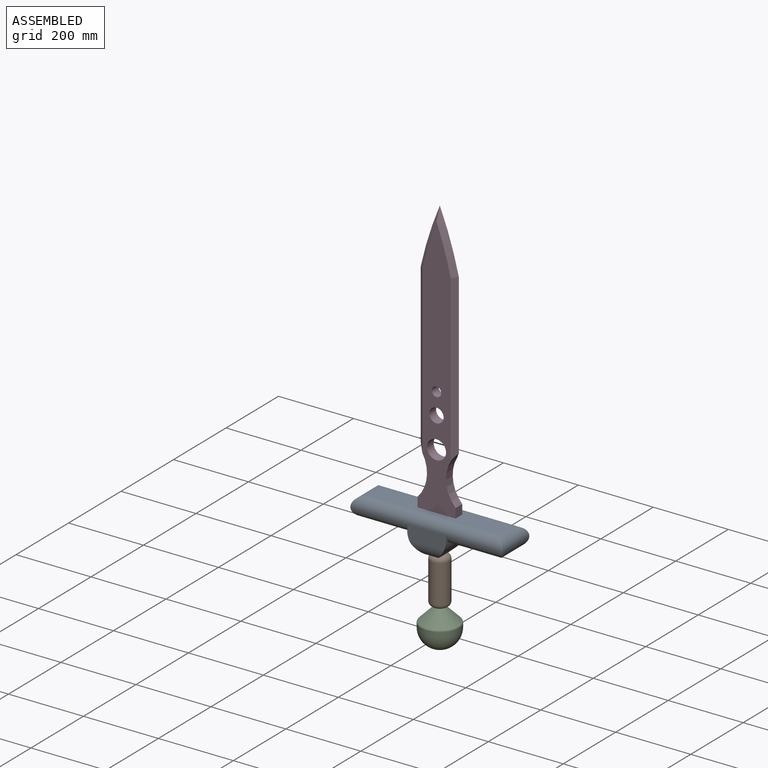
[diagram: assembled view]
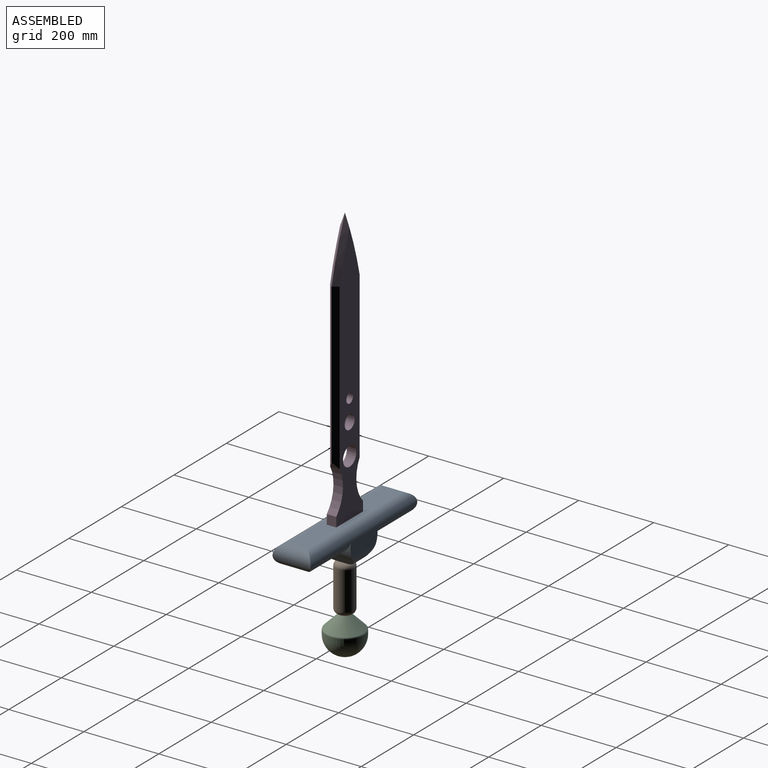
[diagram: assembled view, second angle]
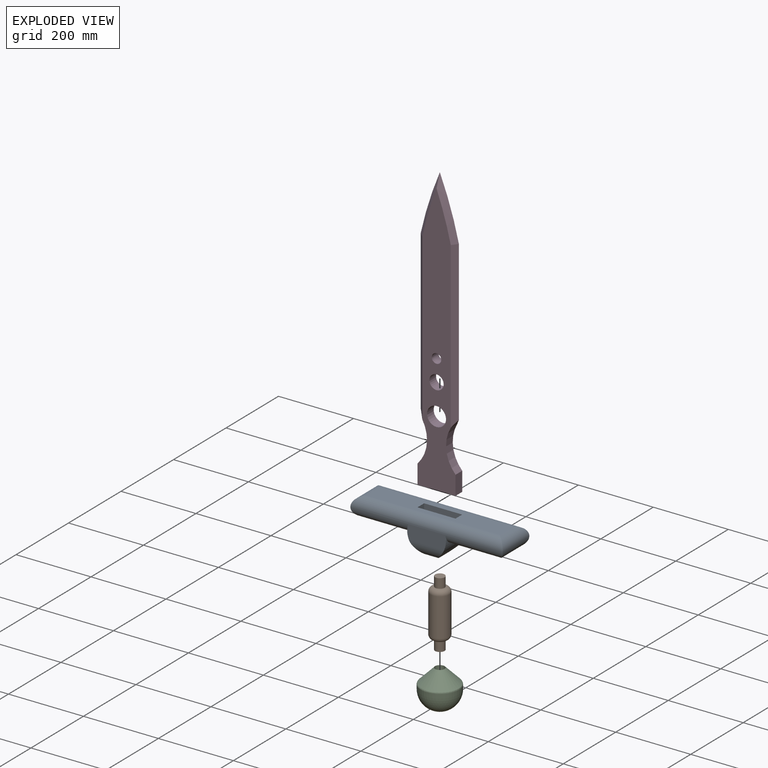
[diagram: exploded view]
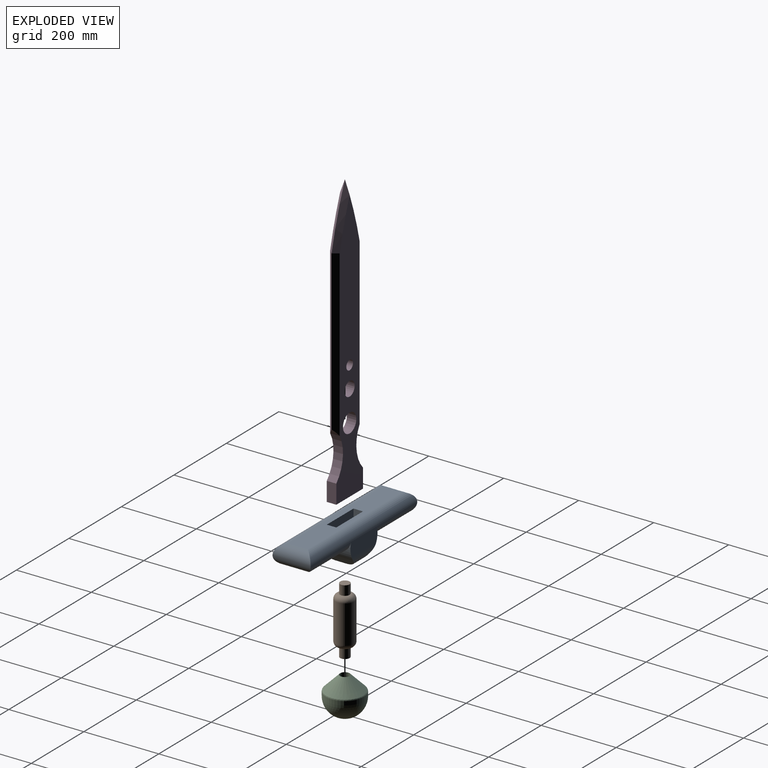
[diagram: exploded view, second angle]
ASSEMBLY  parts=4 mates=3
PART A: 26 faces, bbox 406.6x101.8x101.6 mm
  f0: plane 355.6x50.8mm, normal (0,0,1), area 15483.8mm2, adj f17,f18,f19,f20,f21,f22,f23,f24
  f1: plane 12.7x12.7mm, normal (0,0,-1), area 34.6mm2, adj f7,f12,f14
  f2: plane 12.7x12.7mm, normal (0,0,-1), area 34.6mm2, adj f7,f11,f13
  f3: plane 12.7x12.7mm, normal (0,0,-1), area 34.6mm2, adj f7,f11,f14
  f4: plane 103.27x38.1mm, normal (0,1,0), area 3835.4mm2, adj f14,f15,f16,f17
  f5: plane 103.27x38.1mm, normal (0,-1,0), area 3835.4mm2, adj f13,f15,f16,f19
  f6: plane 12.7x12.7mm, normal (0,0,-1), area 34.6mm2, adj f7,f12,f13
  f7: cylinder r=12.7mm len=25.4mm, axis (0,0,-1), area 2026.8mm2, adj f1,f2,f3,f6,f8
  f8: plane 25.4x25.4mm, normal (0,0,-1), area 506.7mm2, adj f7
  f9: plane 127x50.8mm, normal (0,0,-1), area 6451.6mm2, adj f15,f17,f18,f19
  f10: plane 127x50.8mm, normal (0,0,-1), area 6451.6mm2, adj f16,f17,f19,f20
  f11: plane 96.24x24.06mm, normal (0.71,0,-0.71), area 2610.5mm2, adj f2,f3,f13,f14,f16
  f12: plane 96.24x24.06mm, normal (-0.71,0,-0.71), area 2610.5mm2, adj f1,f6,f13,f14,f15
  f13: cylinder r=38.1mm len=93.37mm, axis (1,0,0), area 3136mm2, adj f2,f5,f6,f11,f12,f15,f16
  f14: cylinder r=38.1mm len=93.37mm, axis (-1,0,0), area 3136mm2, adj f1,f3,f4,f11,f12,f15,f16
  f15: cylinder r=50.8mm len=101.6mm, axis (0,-1,0), area 3362.5mm2, adj f4,f5,f9,f12,f13,f14,f17,f19
  f16: cylinder r=50.8mm len=101.6mm, axis (0,-1,0), area 3362.5mm2, adj f4,f5,f10,f11,f13,f14,f17,f19
  f17: cylinder r=25.4mm len=406.57mm, axis (-1,0,0), area 26884.5mm2, adj f0,f4,f9,f10,f15,f16,f18,f20
  f18: cylinder r=25.4mm len=101.77mm, axis (0,1,0), area 6634.3mm2, adj f0,f9,f17,f19
  f19: cylinder r=25.4mm len=406.57mm, axis (1,0,0), area 26884.5mm2, adj f0,f5,f9,f10,f15,f16,f18,f20
  f20: cylinder r=25.4mm len=101.77mm, axis (0,-1,0), area 6634.3mm2, adj f0,f10,f17,f19
  f21: plane 25.4x25.4mm, normal (-1,0,0), area 645.2mm2, adj f0,f22,f24,f25
  f22: plane 101.6x25.4mm, normal (0,-1,0), area 2580.6mm2, adj f0,f21,f23,f25
  f23: plane 25.4x25.4mm, normal (1,0,0), area 645.2mm2, adj f0,f22,f24,f25
  f24: plane 101.6x25.4mm, normal (0,1,0), area 2580.6mm2, adj f0,f21,f23,f25
  f25: plane 101.6x25.4mm, normal (0,0,1), area 2580.6mm2, adj f21,f22,f23,f24
PART B: 7 faces, bbox 55x55x177.8 mm
  f0: cylinder r=25.4mm len=101.6mm, axis (0,0,-1), area 16214.6mm2, adj f5,f6
  f1: cylinder r=12.7mm len=25.4mm, axis (0,0,-1), area 2026.8mm2, adj f2,f6
  f2: plane 25.4x25.4mm, normal (0,0,1), area 506.7mm2, adj f1
  f3: cylinder r=12.7mm len=25.4mm, axis (0,0,1), area 2026.8mm2, adj f4,f5
  f4: plane 25.4x25.4mm, normal (0,0,-1), area 506.7mm2, adj f3
  f5: torus R=12.7mm, axis (0,0,1), area 2605.3mm2, adj f0,f3
  f6: torus R=12.7mm, axis (0,0,1), area 2605.3mm2, adj f0,f1
PART C: 6 faces, bbox 110x110x101.6 mm
  f0: cylinder r=50.8mm len=101.6mm, axis (0,0,-1), area 3382mm2, adj f4,f5
  f1: cylinder r=12.7mm len=25.4mm, axis (0,0,1), area 2026.8mm2, adj f2,f3
  f2: plane 25.4x25.4mm, normal (0,0,1), area 506.7mm2, adj f1
  f3: cone r=12.7mm half-angle=45deg, axis (0,0,-1), area 10087.1mm2, adj f1,f5
  f4: sphere r=50.8mm, area 16214.6mm2, adj f0
  f5: torus R=45.72mm, axis (0,0,1), area 1260.8mm2, adj f0,f3
PART D: 18 faces, bbox 101.6x25.4x762 mm
  f0: plane 727.66x101.6mm, normal (0,-1,0), area 47244.7mm2, adj f2,f3,f4,f5,f6,f7,f9,f11
  f1: plane 727.66x101.6mm, normal (0,1,0), area 47244.7mm2, adj f2,f3,f4,f5,f6,f8,f10,f12
  f2: plane 50.8x25.4mm, normal (1,0,0), area 1290.3mm2, adj f0,f1,f4,f6
  f3: plane 50.8x25.4mm, normal (-1,0,0), area 1290.3mm2, adj f0,f1,f4,f5
  f4: plane 101.6x25.4mm, normal (0,0,-1), area 2580.6mm2, adj f0,f1,f2,f3
  f5: cylinder r=92.08mm len=127mm, axis (0,-1,0), area 3304.8mm2, adj f0,f1,f3,f13,f14
  f6: cylinder r=92.08mm len=127mm, axis (0,-1,0), area 3304.8mm2, adj f0,f1,f2,f7,f8
  f7: plane 441.72x12.71mm, normal (0.71,-0.71,0), area 7757.3mm2, adj f0,f6,f8,f9
  f8: plane 441.72x12.71mm, normal (0.71,0.71,0), area 7757.3mm2, adj f1,f6,f7,f10
  f9: cone r=952.5mm half-angle=45deg, axis (0,1,0), area 2694.1mm2, adj f0,f7,f10,f11
  f10: cone r=965.2mm half-angle=45deg, axis (0,-1,0), area 2694.1mm2, adj f1,f8,f9,f12
  f11: cone r=965.2mm half-angle=45deg, axis (0,1,0), area 2694.1mm2, adj f0,f9,f12,f13
  f12: cone r=952.5mm half-angle=45deg, axis (0,-1,0), area 2694.1mm2, adj f1,f10,f11,f14
  f13: plane 441.72x12.71mm, normal (-0.71,-0.71,0), area 7757.3mm2, adj f0,f5,f11,f14
  f14: plane 441.72x12.71mm, normal (-0.71,0.71,0), area 7757.3mm2, adj f1,f5,f12,f13
  f15: cylinder r=12.7mm len=25.4mm, axis (0,1,0), area 2026.8mm2, adj f0,f1
  f16: cylinder r=19.05mm len=38.1mm, axis (0,1,0), area 3040.2mm2, adj f0,f1
  f17: cylinder r=25.4mm len=50.8mm, axis (0,1,0), area 4053.7mm2, adj f0,f1
PLACE A t=(39.75,44.42,210)mm
PLACE B t=(39.75,44.42,83)mm
PLACE C t=(39.75,44.42,-18.6)mm
PLACE D t=(39.75,44.42,286.2)mm
MATE fastened D.f4 <-> A.f25  axis (0,0,-1) through (90.55,44.42,286.2)mm
MATE fastened A.f7 <-> B.f1  axis (0,0,-1) through (39.75,44.42,235.4)mm
MATE fastened B.f3 <-> C.f1  axis (0,0,-1) through (39.75,44.42,57.6)mm
